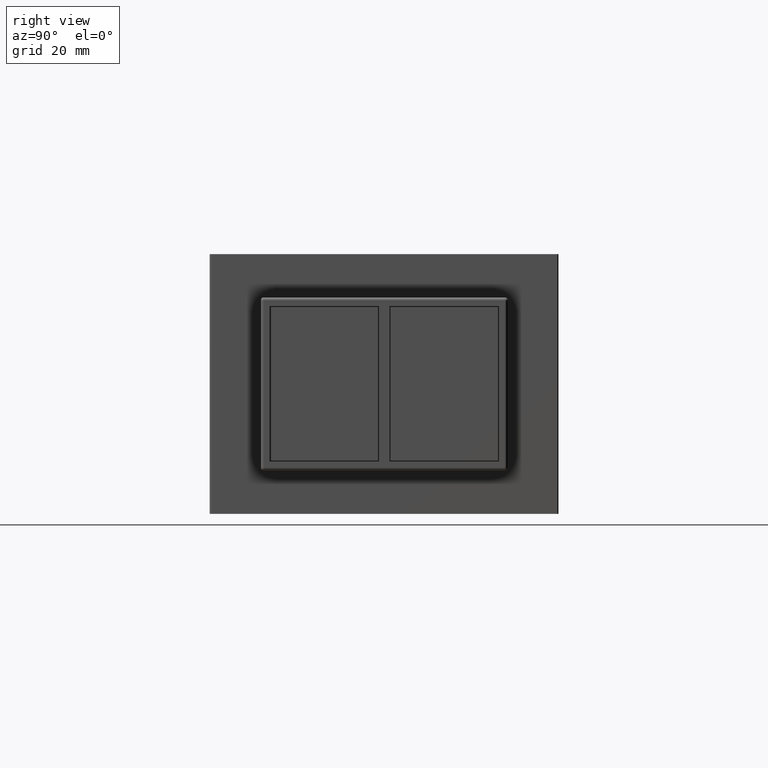
[diagram: clean part render]
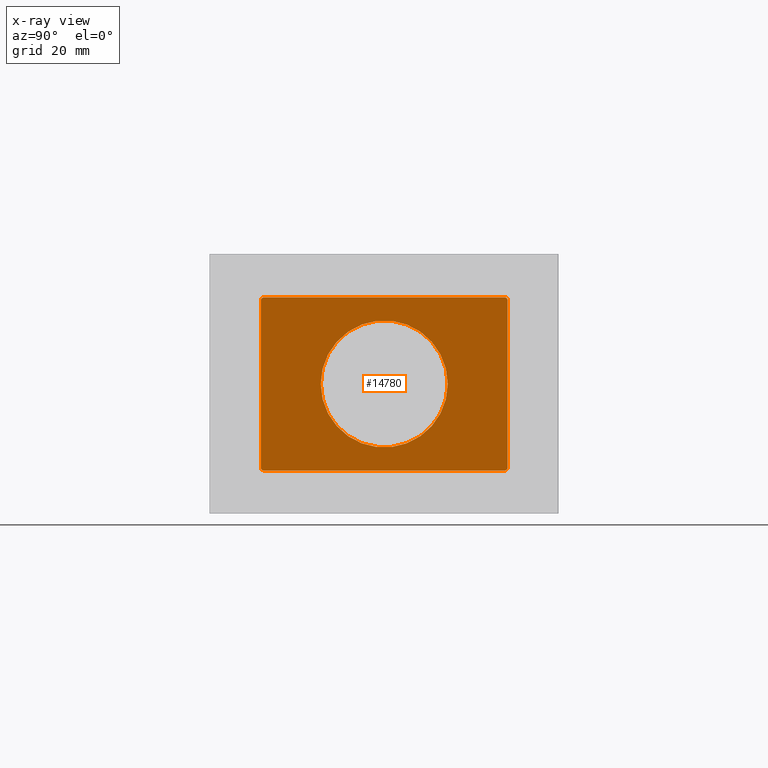
[diagram: x-ray — body ghosted, one internal face saturated and labeled with its STEP entity id]
A machine part, right view, then the same camera in x-ray: the body is ghosted and one INTERNAL B-rep face — a face not visible from any outside direction — is saturated and labeled: STEP entity #14780.
In plain terms, the highlighted planar face has unit normal (-1, 0, 0).
Its self-contained STEP definition (entity closure, byte-faithful):
#13473=CARTESIAN_POINT('',(-8.439384027103658,20.843314320504650,-15.000000000000002));
#13474=VERTEX_POINT('',#13473);
#13481=CARTESIAN_POINT('',(-8.439384027103658,21.343314320504646,-14.500000000000004));
#13482=VERTEX_POINT('',#13481);
#13483=CARTESIAN_POINT('',(-8.439384027103658,20.843314320504653,-14.500000000000009));
#13484=DIRECTION('',(-1.0,0.0,0.0));
#13485=DIRECTION('',(0.0,1.0,0.0));
#13486=AXIS2_PLACEMENT_3D('',#13483,#13484,#13485);
#13487=CIRCLE('',#13486,0.499999999999994);
#13488=EDGE_CURVE('',#13482,#13474,#13487,.T.);
#13505=CARTESIAN_POINT('',(-8.439384027103658,-20.906685679495357,-14.999999999999996));
#13506=VERTEX_POINT('',#13505);
#13513=CARTESIAN_POINT('',(-8.439384027103658,20.843314320504650,-15.000000000000002));
#13514=DIRECTION('',(0.0,-1.0,0.0));
#13515=VECTOR('',#13514,41.750000000000007);
#13516=LINE('',#13513,#13515);
#13517=EDGE_CURVE('',#13474,#13506,#13516,.T.);
#13529=CARTESIAN_POINT('',(-8.439384027103658,-21.406685679495357,-14.499999999999995));
#13530=VERTEX_POINT('',#13529);
#13537=CARTESIAN_POINT('',(-8.439384027103658,-20.906685679495361,-14.500000000000000));
#13538=DIRECTION('',(-1.0,0.0,0.0));
#13539=DIRECTION('',(0.0,0.0,-1.0));
#13540=AXIS2_PLACEMENT_3D('',#13537,#13538,#13539);
#13541=CIRCLE('',#13540,0.499999999999996);
#13542=EDGE_CURVE('',#13506,#13530,#13541,.T.);
#13554=CARTESIAN_POINT('',(-8.439384027103658,-21.406685679495357,14.499999999999995));
#13555=VERTEX_POINT('',#13554);
#13562=CARTESIAN_POINT('',(-8.439384027103658,-21.406685679495357,-14.499999999999995));
#13563=DIRECTION('',(0.0,0.0,1.0));
#13564=VECTOR('',#13563,28.999999999999989);
#13565=LINE('',#13562,#13564);
#13566=EDGE_CURVE('',#13530,#13555,#13565,.T.);
#14158=CARTESIAN_POINT('',(-8.439384027103658,-20.906685679495368,14.999999999999991));
#14159=VERTEX_POINT('',#14158);
#14166=CARTESIAN_POINT('',(-8.439384027103658,-20.906685679495375,14.500000000000011));
#14167=DIRECTION('',(-1.0,0.0,0.0));
#14168=DIRECTION('',(0.0,-1.0,0.0));
#14169=AXIS2_PLACEMENT_3D('',#14166,#14167,#14168);
#14170=CIRCLE('',#14169,0.499999999999980);
#14171=EDGE_CURVE('',#13555,#14159,#14170,.T.);
#14183=CARTESIAN_POINT('',(-8.439384027103658,20.843314320504650,14.999999999999993));
#14184=VERTEX_POINT('',#14183);
#14191=CARTESIAN_POINT('',(-8.439384027103658,-20.906685679495368,14.999999999999991));
#14192=DIRECTION('',(0.0,1.0,0.0));
#14193=VECTOR('',#14192,41.750000000000014);
#14194=LINE('',#14191,#14193);
#14195=EDGE_CURVE('',#14159,#14184,#14194,.T.);
#14207=CARTESIAN_POINT('',(-8.439384027103658,21.343314320504646,14.499999999999995));
#14208=VERTEX_POINT('',#14207);
#14215=CARTESIAN_POINT('',(-8.439384027103658,20.843314320504653,14.500000000000000));
#14216=DIRECTION('',(-1.0,0.0,0.0));
#14217=DIRECTION('',(0.0,0.0,1.0));
#14218=AXIS2_PLACEMENT_3D('',#14215,#14216,#14217);
#14219=CIRCLE('',#14218,0.499999999999994);
#14220=EDGE_CURVE('',#14184,#14208,#14219,.T.);
#14233=CARTESIAN_POINT('',(-8.439384027103658,21.343314320504646,14.499999999999995));
#14234=DIRECTION('',(0.0,0.0,-1.0));
#14235=VECTOR('',#14234,29.0);
#14236=LINE('',#14233,#14235);
#14237=EDGE_CURVE('',#14208,#13482,#14236,.T.);
#14754=CARTESIAN_POINT('',(-8.439384027103658,14.218314320504646,0.0));
#14755=DIRECTION('',(-1.0,0.0,0.0));
#14756=DIRECTION('',(0.0,0.0,1.0));
#14757=AXIS2_PLACEMENT_3D('',#14754,#14755,#14756);
#14758=PLANE('',#14757);
#14759=ORIENTED_EDGE('',*,*,#13517,.T.);
#14760=ORIENTED_EDGE('',*,*,#13542,.T.);
#14761=ORIENTED_EDGE('',*,*,#13566,.T.);
#14762=ORIENTED_EDGE('',*,*,#14171,.T.);
#14763=ORIENTED_EDGE('',*,*,#14195,.T.);
#14764=ORIENTED_EDGE('',*,*,#14220,.T.);
#14765=ORIENTED_EDGE('',*,*,#14237,.T.);
#14766=ORIENTED_EDGE('',*,*,#13488,.T.);
#14767=EDGE_LOOP('',(#14759,#14760,#14761,#14762,#14763,#14764,#14765,#14766));
#14768=FACE_OUTER_BOUND('',#14767,.T.);
#14769=CARTESIAN_POINT('',(-8.439384027103657,-11.031685679495357,1.347067E-015));
#14770=VERTEX_POINT('',#14769);
#14771=CARTESIAN_POINT('',(-8.439384027103657,-0.031685679495357,0.0));
#14772=DIRECTION('',(-1.0,0.0,0.0));
#14773=DIRECTION('',(0.0,1.0,0.0));
#14774=AXIS2_PLACEMENT_3D('',#14771,#14772,#14773);
#14775=CIRCLE('',#14774,11.0);
#14776=EDGE_CURVE('',#14770,#14770,#14775,.T.);
#14777=ORIENTED_EDGE('',*,*,#14776,.F.);
#14778=EDGE_LOOP('',(#14777));
#14779=FACE_BOUND('',#14778,.T.);
#14780=ADVANCED_FACE('',(#14768,#14779),#14758,.T.);